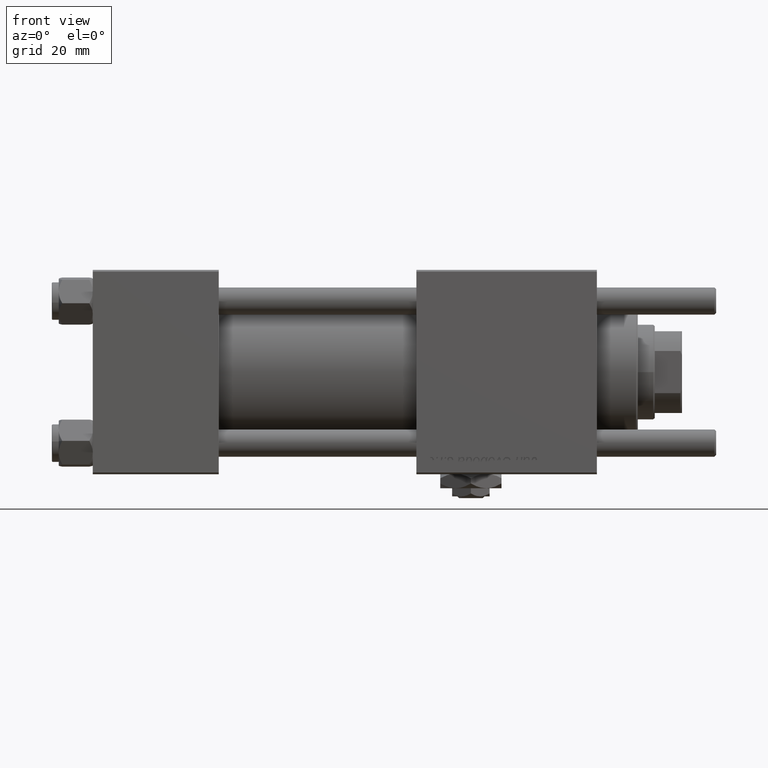
[diagram: clean part render]
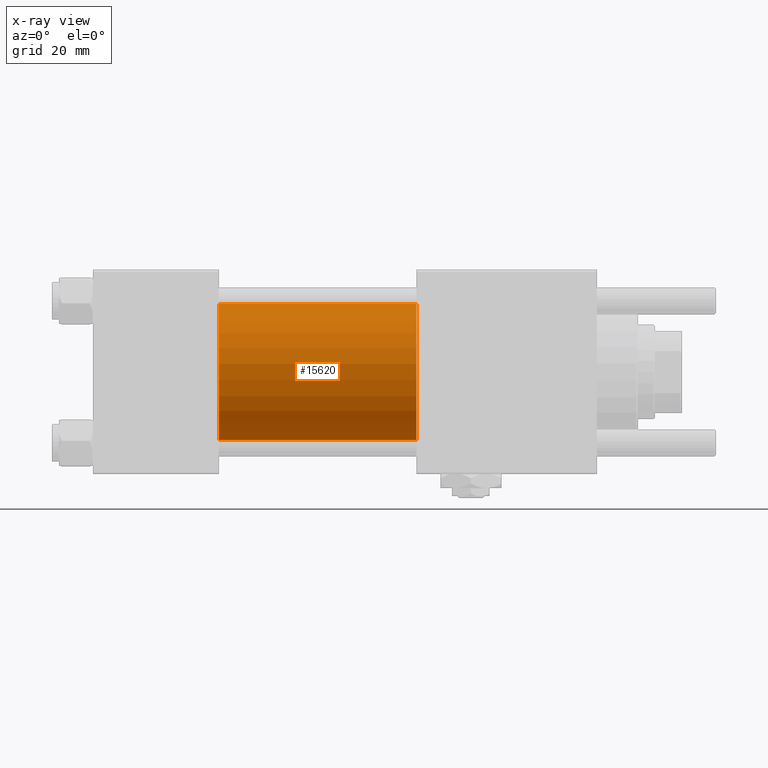
[diagram: x-ray — body ghosted, one internal face saturated and labeled with its STEP entity id]
A machine part, front view, then the same camera in x-ray: the body is ghosted and one INTERNAL B-rep face — a face not visible from any outside direction — is saturated and labeled: STEP entity #15620.
In plain terms, the highlighted cylindrical surface (partial cylindrical patch) has radius 20 mm, axis along (-1, -0, -0).
Its self-contained STEP definition (entity closure, byte-faithful):
#2335 = EDGE_CURVE ( 'NONE', #23483, #16447, #19068, .T. ) ;
#5012 = DIRECTION ( 'NONE',  ( 0.000000000000000000, 0.000000000000000000, -1.000000000000000000 ) ) ;
#5588 = DIRECTION ( 'NONE',  ( 1.000000000000000000, 0.000000000000000000, 0.000000000000000000 ) ) ;
#7845 = DIRECTION ( 'NONE',  ( 0.000000000000000000, 0.000000000000000000, -1.000000000000000000 ) ) ;
#8431 = DIRECTION ( 'NONE',  ( 1.000000000000000000, 0.000000000000000000, 0.000000000000000000 ) ) ;
#10569 = CARTESIAN_POINT ( 'NONE',  ( 95.00000000000000000, -1.527916156705046464E-16, -20.00000000000000000 ) ) ;
#12674 = AXIS2_PLACEMENT_3D ( 'NONE', #55303, #51163, #28396 ) ;
#14673 = LINE ( 'NONE', #32728, #23081 ) ;
#15620 = ADVANCED_FACE ( 'NONE', ( #37853 ), #23674, .F. ) ;
#15727 = ORIENTED_EDGE ( 'NONE', *, *, #45756, .T. ) ;
#16447 = VERTEX_POINT ( 'NONE', #58393 ) ;
#19068 = CIRCLE ( 'NONE', #41760, 20.00000000000000000 ) ;
#19406 = DIRECTION ( 'NONE',  ( -1.000000000000000000, -0.000000000000000000, -0.000000000000000000 ) ) ;
#23081 = VECTOR ( 'NONE', #19406, 1000.000000000000000 ) ;
#23462 = ORIENTED_EDGE ( 'NONE', *, *, #2335, .F. ) ;
#23483 = VERTEX_POINT ( 'NONE', #52276 ) ;
#23674 = CYLINDRICAL_SURFACE ( 'NONE', #12674, 20.00000000000000000 ) ;
#28396 = DIRECTION ( 'NONE',  ( 0.000000000000000000, 0.000000000000000000, 1.000000000000000000 ) ) ;
#28998 = CARTESIAN_POINT ( 'NONE',  ( 95.00000000000000000, -2.602085213965210642E-15, 20.00000000000000000 ) ) ;
#30147 = EDGE_CURVE ( 'NONE', #56726, #16447, #39093, .T. ) ;
#32526 = CARTESIAN_POINT ( 'NONE',  ( 95.00000000000000000, -2.602085213965210642E-15, 0.000000000000000000 ) ) ;
#32728 = CARTESIAN_POINT ( 'NONE',  ( 95.00000000000000000, -2.602085213965210642E-15, 20.00000000000000000 ) ) ;
#34399 = EDGE_LOOP ( 'NONE', ( #15727, #51996, #23462, #57939 ) ) ;
#37046 = VERTEX_POINT ( 'NONE', #28998 ) ;
#37853 = FACE_OUTER_BOUND ( 'NONE', #34399, .T. ) ;
#39093 = LINE ( 'NONE', #57139, #45139 ) ;
#39818 = CARTESIAN_POINT ( 'NONE',  ( 37.00000000000000000, -2.602085213965210642E-15, 0.000000000000000000 ) ) ;
#41760 = AXIS2_PLACEMENT_3D ( 'NONE', #39818, #8431, #7845 ) ;
#43820 = CIRCLE ( 'NONE', #45709, 20.00000000000000000 ) ;
#45139 = VECTOR ( 'NONE', #47965, 1000.000000000000000 ) ;
#45709 = AXIS2_PLACEMENT_3D ( 'NONE', #32526, #5588, #5012 ) ;
#45756 = EDGE_CURVE ( 'NONE', #37046, #56726, #43820, .T. ) ;
#46693 = EDGE_CURVE ( 'NONE', #37046, #23483, #14673, .T. ) ;
#47965 = DIRECTION ( 'NONE',  ( -1.000000000000000000, -0.000000000000000000, -0.000000000000000000 ) ) ;
#51163 = DIRECTION ( 'NONE',  ( -1.000000000000000000, -0.000000000000000000, -0.000000000000000000 ) ) ;
#51996 = ORIENTED_EDGE ( 'NONE', *, *, #30147, .T. ) ;
#52276 = CARTESIAN_POINT ( 'NONE',  ( 37.00000000000000000, -2.602085213965210642E-15, 20.00000000000000000 ) ) ;
#55303 = CARTESIAN_POINT ( 'NONE',  ( 95.00000000000000000, -2.602085213965210642E-15, 0.000000000000000000 ) ) ;
#56726 = VERTEX_POINT ( 'NONE', #10569 ) ;
#57139 = CARTESIAN_POINT ( 'NONE',  ( 95.00000000000000000, -1.527916156705046464E-16, -20.00000000000000000 ) ) ;
#57939 = ORIENTED_EDGE ( 'NONE', *, *, #46693, .F. ) ;
#58393 = CARTESIAN_POINT ( 'NONE',  ( 37.00000000000000000, -1.527916156705046464E-16, -20.00000000000000000 ) ) ;